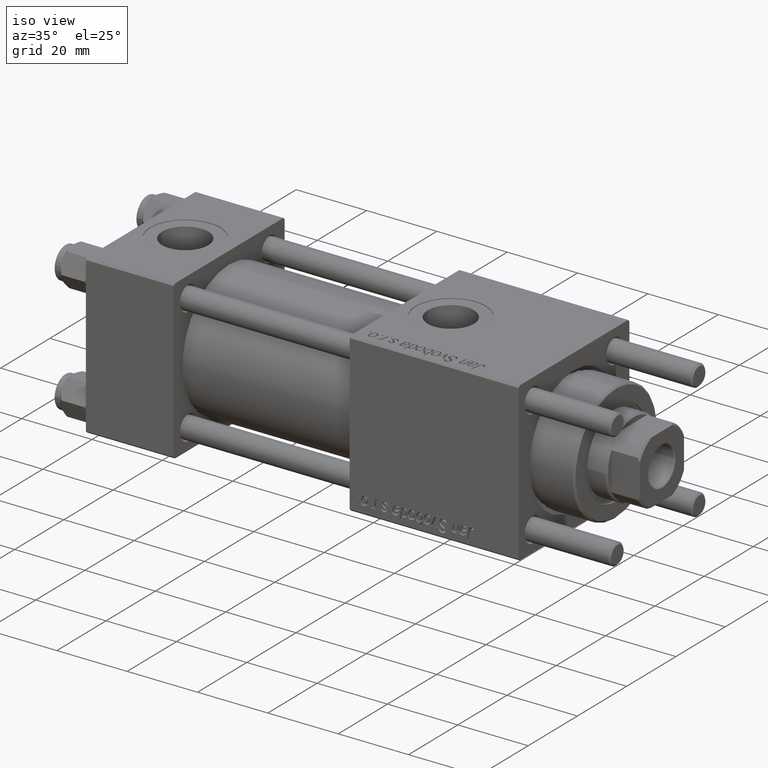
[diagram: clean part render]
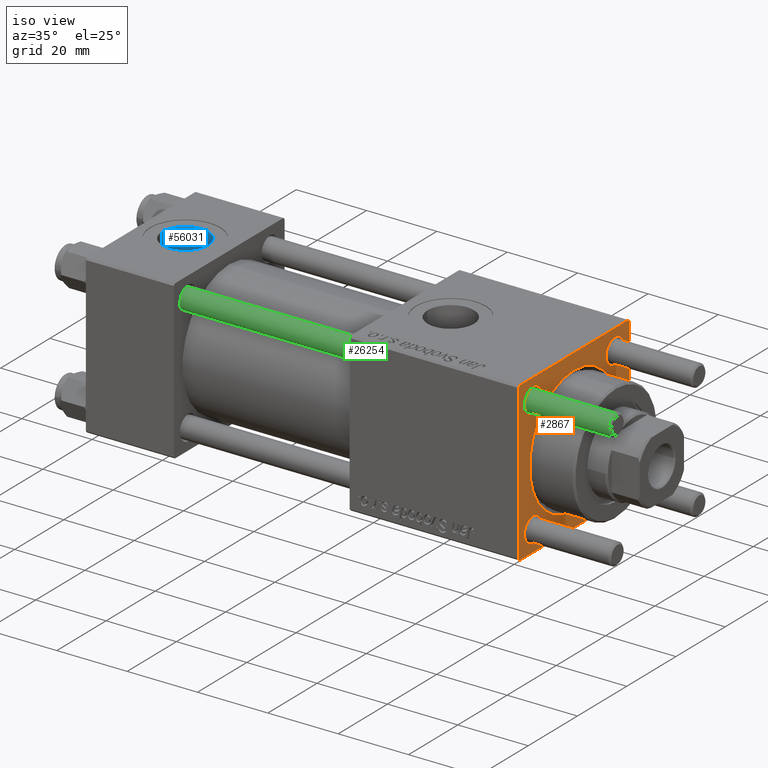
[diagram: same view with three faces highlighted in distinct colors, each labeled with its STEP entity id]
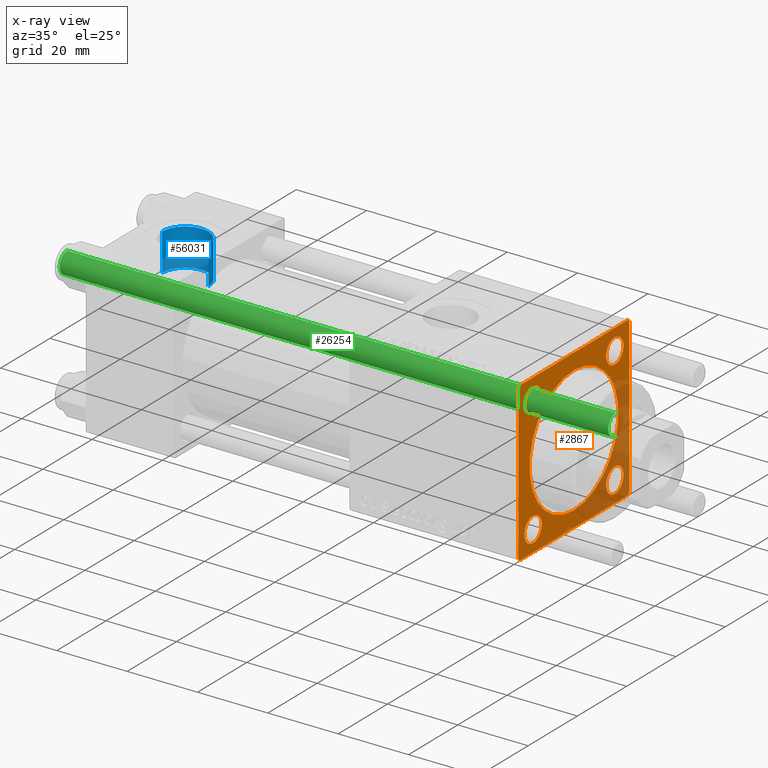
[diagram: x-ray of the same camera — body ghosted, the three highlighted faces saturated]
A machine part, iso view with three faces highlighted in distinct colors.
The next image is the same camera in x-ray (body ghosted, the three faces saturated) — at least one of them is partly hidden behind the body in this view.
Their STEP definitions:

[orange] entity #2867 — the highlighted planar face has unit normal (-1, 0, 0).
#214 = AXIS2_PLACEMENT_3D ( 'NONE', #21863, #52619, #13211 ) ;
#650 = CIRCLE ( 'NONE', #33704, 3.499999999999989342 ) ;
#688 = AXIS2_PLACEMENT_3D ( 'NONE', #17578, #35122, #29943 ) ;
#1397 = ORIENTED_EDGE ( 'NONE', *, *, #16731, .T. ) ;
#1808 = CARTESIAN_POINT ( 'NONE',  ( 123.0000000000000142, -16.59999999999999076, -13.09999999999997655 ) ) ;
#1847 = VERTEX_POINT ( 'NONE', #38902 ) ;
#1916 = DIRECTION ( 'NONE',  ( 0.000000000000000000, 0.000000000000000000, 1.000000000000000000 ) ) ;
#2017 = ORIENTED_EDGE ( 'NONE', *, *, #36062, .T. ) ;
#2074 = VERTEX_POINT ( 'NONE', #52852 ) ;
#2379 = FACE_BOUND ( 'NONE', #4529, .T. ) ;
#2867 = ADVANCED_FACE ( 'NONE', ( #33970, #51516, #6692, #41755, #2379, #17864 ), #30506, .F. ) ;
#2946 = AXIS2_PLACEMENT_3D ( 'NONE', #32946, #7348, #1916 ) ;
#3245 = DIRECTION ( 'NONE',  ( 0.000000000000000000, 0.000000000000000000, 1.000000000000000000 ) ) ;
#3787 = AXIS2_PLACEMENT_3D ( 'NONE', #25736, #42964, #17086 ) ;
#4095 = ORIENTED_EDGE ( 'NONE', *, *, #42957, .T. ) ;
#4123 = ORIENTED_EDGE ( 'NONE', *, *, #48319, .T. ) ;
#4492 = EDGE_CURVE ( 'NONE', #29755, #36740, #8053, .T. ) ;
#4529 = EDGE_LOOP ( 'NONE', ( #26542, #1397 ) ) ;
#4968 = VERTEX_POINT ( 'NONE', #20352 ) ;
#5859 = ORIENTED_EDGE ( 'NONE', *, *, #36490, .T. ) ;
#6384 = VECTOR ( 'NONE', #26390, 1000.000000000000000 ) ;
#6692 = FACE_BOUND ( 'NONE', #42175, .T. ) ;
#6887 = EDGE_CURVE ( 'NONE', #25739, #25387, #21450, .T. ) ;
#7004 = VERTEX_POINT ( 'NONE', #50725 ) ;
#7311 = VERTEX_POINT ( 'NONE', #41460 ) ;
#7348 = DIRECTION ( 'NONE',  ( -1.000000000000000000, 0.000000000000000000, -0.000000000000000000 ) ) ;
#7392 = VERTEX_POINT ( 'NONE', #21313 ) ;
#7532 = LINE ( 'NONE', #11841, #43984 ) ;
#8053 = CIRCLE ( 'NONE', #55787, 18.00000000000000355 ) ;
#8193 = VERTEX_POINT ( 'NONE', #1808 ) ;
#8553 = AXIS2_PLACEMENT_3D ( 'NONE', #30912, #34952, #8786 ) ;
#8786 = DIRECTION ( 'NONE',  ( 0.000000000000000000, 0.000000000000000000, 1.000000000000000000 ) ) ;
#9824 = EDGE_CURVE ( 'NONE', #4968, #7004, #26102, .T. ) ;
#10310 = ORIENTED_EDGE ( 'NONE', *, *, #48461, .T. ) ;
#10844 = EDGE_CURVE ( 'NONE', #10893, #15717, #34722, .T. ) ;
#10893 = VERTEX_POINT ( 'NONE', #36163 ) ;
#11514 = VERTEX_POINT ( 'NONE', #52132 ) ;
#11816 = DIRECTION ( 'NONE',  ( -1.000000000000000000, 0.000000000000000000, -0.000000000000000000 ) ) ;
#11841 = CARTESIAN_POINT ( 'NONE',  ( 123.0000000000000142, 21.99999999999996092, 22.50000000000000355 ) ) ;
#12779 = CARTESIAN_POINT ( 'NONE',  ( 123.0000000000000142, -22.49999999999999645, -21.99999999999997868 ) ) ;
#13211 = DIRECTION ( 'NONE',  ( 0.000000000000000000, 0.000000000000000000, 1.000000000000000000 ) ) ;
#13268 = CIRCLE ( 'NONE', #19728, 3.500000000000031086 ) ;
#13425 = CARTESIAN_POINT ( 'NONE',  ( 123.0000000000000142, 22.50000000000000355, 22.50000000000000355 ) ) ;
#14593 = CARTESIAN_POINT ( 'NONE',  ( 123.0000000000000142, -21.99999999999999645, -22.50000000000000000 ) ) ;
#14870 = EDGE_CURVE ( 'NONE', #43153, #23550, #18499, .T. ) ;
#15717 = VERTEX_POINT ( 'NONE', #12779 ) ;
#15859 = ORIENTED_EDGE ( 'NONE', *, *, #10844, .T. ) ;
#15934 = VECTOR ( 'NONE', #54939, 1000.000000000000000 ) ;
#16731 = EDGE_CURVE ( 'NONE', #36740, #29755, #20256, .T. ) ;
#17086 = DIRECTION ( 'NONE',  ( 0.000000000000000000, 0.000000000000000000, 1.000000000000000000 ) ) ;
#17560 = VERTEX_POINT ( 'NONE', #35635 ) ;
#17578 = CARTESIAN_POINT ( 'NONE',  ( 123.0000000000000142, 0.000000000000000000, 0.000000000000000000 ) ) ;
#17864 = FACE_OUTER_BOUND ( 'NONE', #54609, .T. ) ;
#18499 = CIRCLE ( 'NONE', #3787, 3.500000000000031086 ) ;
#18737 = DIRECTION ( 'NONE',  ( -1.000000000000000000, 0.000000000000000000, -0.000000000000000000 ) ) ;
#19203 = DIRECTION ( 'NONE',  ( 0.000000000000000000, 0.7071067811865425767, -0.7071067811865525687 ) ) ;
#19728 = AXIS2_PLACEMENT_3D ( 'NONE', #48995, #30871, #53313 ) ;
#20204 = AXIS2_PLACEMENT_3D ( 'NONE', #55523, #11816, #29358 ) ;
#20256 = CIRCLE ( 'NONE', #33091, 18.00000000000000355 ) ;
#20352 = CARTESIAN_POINT ( 'NONE',  ( 123.0000000000000142, 21.99999999999996092, 22.50000000000000355 ) ) ;
#20360 = ORIENTED_EDGE ( 'NONE', *, *, #14870, .T. ) ;
#20436 = CARTESIAN_POINT ( 'NONE',  ( 123.0000000000000142, 22.50000000000000355, -22.49999999999999645 ) ) ;
#20661 = CARTESIAN_POINT ( 'NONE',  ( 123.0000000000000142, -21.99999999999998224, -22.50000000000000000 ) ) ;
#20663 = ORIENTED_EDGE ( 'NONE', *, *, #35722, .T. ) ;
#21060 = CARTESIAN_POINT ( 'NONE',  ( 123.0000000000000142, 22.50000000000000355, -22.00000000000001066 ) ) ;
#21313 = CARTESIAN_POINT ( 'NONE',  ( 123.0000000000000142, -16.59999999999999076, 20.10000000000000142 ) ) ;
#21351 = CARTESIAN_POINT ( 'NONE',  ( 123.0000000000000142, 0.000000000000000000, 0.000000000000000000 ) ) ;
#21450 = LINE ( 'NONE', #26043, #37530 ) ;
#21804 = DIRECTION ( 'NONE',  ( 0.000000000000000000, 0.000000000000000000, -1.000000000000000000 ) ) ;
#21839 = EDGE_CURVE ( 'NONE', #25739, #4968, #7532, .T. ) ;
#21863 = CARTESIAN_POINT ( 'NONE',  ( 123.0000000000000142, -16.59999999999999076, -16.60000000000000853 ) ) ;
#21933 = LINE ( 'NONE', #56703, #51607 ) ;
#22162 = EDGE_CURVE ( 'NONE', #7311, #7392, #25691, .T. ) ;
#23193 = AXIS2_PLACEMENT_3D ( 'NONE', #42914, #30262, #3245 ) ;
#23550 = VERTEX_POINT ( 'NONE', #45769 ) ;
#24103 = ORIENTED_EDGE ( 'NONE', *, *, #9824, .T. ) ;
#25387 = VERTEX_POINT ( 'NONE', #49955 ) ;
#25472 = DIRECTION ( 'NONE',  ( 0.000000000000000000, 0.000000000000000000, -1.000000000000000000 ) ) ;
#25691 = CIRCLE ( 'NONE', #20204, 3.499999999999989342 ) ;
#25736 = CARTESIAN_POINT ( 'NONE',  ( 123.0000000000000142, 16.59999999999999787, 16.60000000000000497 ) ) ;
#25739 = VERTEX_POINT ( 'NONE', #50163 ) ;
#26043 = CARTESIAN_POINT ( 'NONE',  ( 123.0000000000000142, 22.50000000000000355, 22.50000000000000355 ) ) ;
#26055 = EDGE_CURVE ( 'NONE', #15717, #39037, #31847, .T. ) ;
#26086 = EDGE_LOOP ( 'NONE', ( #38886, #33690 ) ) ;
#26102 = LINE ( 'NONE', #13425, #6384 ) ;
#26227 = LINE ( 'NONE', #21060, #30752 ) ;
#26390 = DIRECTION ( 'NONE',  ( 0.000000000000000000, -1.000000000000000000, -2.312964634635742957E-16 ) ) ;
#26542 = ORIENTED_EDGE ( 'NONE', *, *, #4492, .T. ) ;
#28676 = CARTESIAN_POINT ( 'NONE',  ( 123.0000000000000142, -16.59999999999999076, 16.60000000000000853 ) ) ;
#29060 = LINE ( 'NONE', #20436, #15934 ) ;
#29358 = DIRECTION ( 'NONE',  ( 0.000000000000000000, 0.000000000000000000, 1.000000000000000000 ) ) ;
#29406 = ORIENTED_EDGE ( 'NONE', *, *, #40200, .F. ) ;
#29755 = VERTEX_POINT ( 'NONE', #39279 ) ;
#29943 = DIRECTION ( 'NONE',  ( -0.000000000000000000, 0.000000000000000000, 1.000000000000000000 ) ) ;
#30262 = DIRECTION ( 'NONE',  ( -1.000000000000000000, 0.000000000000000000, -0.000000000000000000 ) ) ;
#30408 = CARTESIAN_POINT ( 'NONE',  ( 123.0000000000000142, -22.49999999999999645, 22.49999999999999289 ) ) ;
#30506 = PLANE ( 'NONE',  #688 ) ;
#30752 = VECTOR ( 'NONE', #47502, 1000.000000000000000 ) ;
#30871 = DIRECTION ( 'NONE',  ( -1.000000000000000000, 0.000000000000000000, -0.000000000000000000 ) ) ;
#30912 = CARTESIAN_POINT ( 'NONE',  ( 123.0000000000000142, 16.59999999999999787, 16.60000000000000497 ) ) ;
#31847 = LINE ( 'NONE', #14593, #34786 ) ;
#32396 = CIRCLE ( 'NONE', #8553, 3.500000000000031086 ) ;
#32946 = CARTESIAN_POINT ( 'NONE',  ( 123.0000000000000142, 16.59999999999999787, -16.60000000000000497 ) ) ;
#33091 = AXIS2_PLACEMENT_3D ( 'NONE', #21351, #43749, #35428 ) ;
#33690 = ORIENTED_EDGE ( 'NONE', *, *, #56150, .T. ) ;
#33704 = AXIS2_PLACEMENT_3D ( 'NONE', #28676, #51081, #37866 ) ;
#33970 = FACE_BOUND ( 'NONE', #44911, .T. ) ;
#34302 = ORIENTED_EDGE ( 'NONE', *, *, #26055, .T. ) ;
#34722 = LINE ( 'NONE', #30408, #36756 ) ;
#34786 = VECTOR ( 'NONE', #19203, 999.9999999999998863 ) ;
#34952 = DIRECTION ( 'NONE',  ( -1.000000000000000000, 0.000000000000000000, -0.000000000000000000 ) ) ;
#35122 = DIRECTION ( 'NONE',  ( -1.000000000000000000, 0.000000000000000000, -0.000000000000000000 ) ) ;
#35428 = DIRECTION ( 'NONE',  ( 0.000000000000000000, 0.000000000000000000, 1.000000000000000000 ) ) ;
#35635 = CARTESIAN_POINT ( 'NONE',  ( 123.0000000000000142, 22.00000000000000355, -22.49999999999999645 ) ) ;
#35722 = EDGE_CURVE ( 'NONE', #7004, #10893, #21933, .T. ) ;
#36062 = EDGE_CURVE ( 'NONE', #1847, #8193, #55309, .T. ) ;
#36108 = EDGE_CURVE ( 'NONE', #11514, #2074, #36935, .T. ) ;
#36163 = CARTESIAN_POINT ( 'NONE',  ( 123.0000000000000142, -22.49999999999999645, 22.00000000000000711 ) ) ;
#36490 = EDGE_CURVE ( 'NONE', #2074, #11514, #47955, .T. ) ;
#36740 = VERTEX_POINT ( 'NONE', #56073 ) ;
#36756 = VECTOR ( 'NONE', #21804, 1000.000000000000000 ) ;
#36935 = CIRCLE ( 'NONE', #2946, 3.500000000000031086 ) ;
#37530 = VECTOR ( 'NONE', #25472, 1000.000000000000000 ) ;
#37866 = DIRECTION ( 'NONE',  ( 0.000000000000000000, 0.000000000000000000, 1.000000000000000000 ) ) ;
#38886 = ORIENTED_EDGE ( 'NONE', *, *, #22162, .T. ) ;
#38902 = CARTESIAN_POINT ( 'NONE',  ( 123.0000000000000142, -16.59999999999999076, -20.10000000000003695 ) ) ;
#39037 = VERTEX_POINT ( 'NONE', #20661 ) ;
#39279 = CARTESIAN_POINT ( 'NONE',  ( 123.0000000000000142, 0.000000000000000000, -18.00000000000000355 ) ) ;
#39444 = DIRECTION ( 'NONE',  ( -0.000000000000000000, -0.7071067811865573427, -0.7071067811865378028 ) ) ;
#40200 = EDGE_CURVE ( 'NONE', #17560, #39037, #29060, .T. ) ;
#41460 = CARTESIAN_POINT ( 'NONE',  ( 123.0000000000000142, -16.59999999999999076, 13.10000000000001741 ) ) ;
#41755 = FACE_BOUND ( 'NONE', #26086, .T. ) ;
#42175 = EDGE_LOOP ( 'NONE', ( #4095, #20360 ) ) ;
#42880 = DIRECTION ( 'NONE',  ( 0.000000000000000000, -0.7071067811865573427, 0.7071067811865378028 ) ) ;
#42914 = CARTESIAN_POINT ( 'NONE',  ( 123.0000000000000142, 16.59999999999999787, -16.60000000000000497 ) ) ;
#42957 = EDGE_CURVE ( 'NONE', #23550, #43153, #32396, .T. ) ;
#42964 = DIRECTION ( 'NONE',  ( -1.000000000000000000, 0.000000000000000000, -0.000000000000000000 ) ) ;
#43153 = VERTEX_POINT ( 'NONE', #47250 ) ;
#43749 = DIRECTION ( 'NONE',  ( -1.000000000000000000, 0.000000000000000000, -0.000000000000000000 ) ) ;
#43984 = VECTOR ( 'NONE', #42880, 1000.000000000000000 ) ;
#44911 = EDGE_LOOP ( 'NONE', ( #2017, #4123 ) ) ;
#45769 = CARTESIAN_POINT ( 'NONE',  ( 123.0000000000000142, 16.59999999999999787, 13.09999999999997300 ) ) ;
#45875 = ORIENTED_EDGE ( 'NONE', *, *, #6887, .F. ) ;
#47250 = CARTESIAN_POINT ( 'NONE',  ( 123.0000000000000142, 16.59999999999999787, 20.10000000000003340 ) ) ;
#47465 = ORIENTED_EDGE ( 'NONE', *, *, #36108, .T. ) ;
#47502 = DIRECTION ( 'NONE',  ( -0.000000000000000000, 0.7071067811865573427, 0.7071067811865378028 ) ) ;
#47955 = CIRCLE ( 'NONE', #23193, 3.500000000000031086 ) ;
#48319 = EDGE_CURVE ( 'NONE', #8193, #1847, #13268, .T. ) ;
#48461 = EDGE_CURVE ( 'NONE', #17560, #25387, #26227, .T. ) ;
#48638 = CARTESIAN_POINT ( 'NONE',  ( 123.0000000000000142, 0.000000000000000000, 0.000000000000000000 ) ) ;
#48995 = CARTESIAN_POINT ( 'NONE',  ( 123.0000000000000142, -16.59999999999999076, -16.60000000000000853 ) ) ;
#49955 = CARTESIAN_POINT ( 'NONE',  ( 123.0000000000000142, 22.50000000000000355, -21.99999999999999645 ) ) ;
#49989 = EDGE_LOOP ( 'NONE', ( #47465, #5859 ) ) ;
#50163 = CARTESIAN_POINT ( 'NONE',  ( 123.0000000000000142, 22.50000000000000355, 21.99999999999997513 ) ) ;
#50725 = CARTESIAN_POINT ( 'NONE',  ( 123.0000000000000142, -21.99999999999998224, 22.49999999999999289 ) ) ;
#51081 = DIRECTION ( 'NONE',  ( -1.000000000000000000, 0.000000000000000000, -0.000000000000000000 ) ) ;
#51516 = FACE_BOUND ( 'NONE', #49989, .T. ) ;
#51607 = VECTOR ( 'NONE', #39444, 1000.000000000000000 ) ;
#52132 = CARTESIAN_POINT ( 'NONE',  ( 123.0000000000000142, 16.59999999999999787, -20.10000000000003340 ) ) ;
#52619 = DIRECTION ( 'NONE',  ( -1.000000000000000000, 0.000000000000000000, -0.000000000000000000 ) ) ;
#52852 = CARTESIAN_POINT ( 'NONE',  ( 123.0000000000000142, 16.59999999999999787, -13.09999999999997300 ) ) ;
#53242 = DIRECTION ( 'NONE',  ( 0.000000000000000000, 0.000000000000000000, 1.000000000000000000 ) ) ;
#53313 = DIRECTION ( 'NONE',  ( 0.000000000000000000, 0.000000000000000000, 1.000000000000000000 ) ) ;
#53676 = ORIENTED_EDGE ( 'NONE', *, *, #21839, .T. ) ;
#54609 = EDGE_LOOP ( 'NONE', ( #15859, #34302, #29406, #10310, #45875, #53676, #24103, #20663 ) ) ;
#54939 = DIRECTION ( 'NONE',  ( 0.000000000000000000, -1.000000000000000000, -7.709882115452476934E-17 ) ) ;
#55309 = CIRCLE ( 'NONE', #214, 3.500000000000031086 ) ;
#55523 = CARTESIAN_POINT ( 'NONE',  ( 123.0000000000000142, -16.59999999999999076, 16.60000000000000853 ) ) ;
#55787 = AXIS2_PLACEMENT_3D ( 'NONE', #48638, #18737, #53242 ) ;
#56073 = CARTESIAN_POINT ( 'NONE',  ( 123.0000000000000142, 2.204364238465235822E-15, 18.00000000000000355 ) ) ;
#56150 = EDGE_CURVE ( 'NONE', #7392, #7311, #650, .T. ) ;
#56703 = CARTESIAN_POINT ( 'NONE',  ( 123.0000000000000142, -22.49999999999999645, 22.00000000000000711 ) ) ;

[blue] entity #56031 — the highlighted cylindrical surface (edge-blend (fillet) strip) has radius 6.58 mm, axis along (0, 0, 1).
#133 = CIRCLE ( 'NONE', #46934, 6.579999999999999183 ) ;
#669 = VERTEX_POINT ( 'NONE', #17106 ) ;
#2125 = CARTESIAN_POINT ( 'NONE',  ( 5.920000000000002593, -9.289058821378490386E-16, 11.66598726114649409 ) ) ;
#2794 = DIRECTION ( 'NONE',  ( -0.000000000000000000, -0.000000000000000000, 1.000000000000000000 ) ) ;
#4894 = VERTEX_POINT ( 'NONE', #15455 ) ;
#9723 = EDGE_CURVE ( 'NONE', #30986, #669, #39447, .T. ) ;
#11437 = EDGE_CURVE ( 'NONE', #669, #4894, #21388, .T. ) ;
#13348 = ORIENTED_EDGE ( 'NONE', *, *, #33046, .T. ) ;
#15302 = CARTESIAN_POINT ( 'NONE',  ( 5.920000000000002593, -9.289058821378490386E-16, 22.30000000000000071 ) ) ;
#15455 = CARTESIAN_POINT ( 'NONE',  ( 19.07999999999999829, -1.734723475976807094E-15, 22.30000000000000071 ) ) ;
#16035 = EDGE_CURVE ( 'NONE', #30986, #23589, #44337, .T. ) ;
#17106 = CARTESIAN_POINT ( 'NONE',  ( 19.07999999999999829, -1.734723475976807094E-15, 11.66598726114649409 ) ) ;
#17201 = ORIENTED_EDGE ( 'NONE', *, *, #16035, .F. ) ;
#20965 = DIRECTION ( 'NONE',  ( 0.000000000000000000, 0.000000000000000000, 1.000000000000000000 ) ) ;
#21388 = LINE ( 'NONE', #56729, #33055 ) ;
#23589 = VERTEX_POINT ( 'NONE', #15302 ) ;
#24946 = FACE_OUTER_BOUND ( 'NONE', #27951, .T. ) ;
#26660 = VECTOR ( 'NONE', #45186, 1000.000000000000000 ) ;
#27951 = EDGE_LOOP ( 'NONE', ( #17201, #40380, #48023, #13348 ) ) ;
#29238 = CARTESIAN_POINT ( 'NONE',  ( 12.50000000000000000, -1.734723475976807094E-15, 11.69999999999999929 ) ) ;
#29274 = DIRECTION ( 'NONE',  ( -0.000000000000000000, -0.000000000000000000, -1.000000000000000000 ) ) ;
#30986 = VERTEX_POINT ( 'NONE', #2125 ) ;
#33046 = EDGE_CURVE ( 'NONE', #4894, #23589, #133, .T. ) ;
#33055 = VECTOR ( 'NONE', #42651, 1000.000000000000000 ) ;
#36297 = CARTESIAN_POINT ( 'NONE',  ( 5.920000000000002593, -9.289058821378490386E-16, 11.69999999999999929 ) ) ;
#38702 = DIRECTION ( 'NONE',  ( 1.000000000000000000, 0.000000000000000000, 0.000000000000000000 ) ) ;
#39447 = CIRCLE ( 'NONE', #48621, 6.579999999999999183 ) ;
#40380 = ORIENTED_EDGE ( 'NONE', *, *, #9723, .T. ) ;
#42449 = CYLINDRICAL_SURFACE ( 'NONE', #50210, 6.579999999999999183 ) ;
#42651 = DIRECTION ( 'NONE',  ( -0.000000000000000000, -0.000000000000000000, 1.000000000000000000 ) ) ;
#44337 = LINE ( 'NONE', #36297, #26660 ) ;
#45186 = DIRECTION ( 'NONE',  ( -0.000000000000000000, -0.000000000000000000, 1.000000000000000000 ) ) ;
#45952 = CARTESIAN_POINT ( 'NONE',  ( 12.50000000000000000, -1.734723475976807094E-15, 11.66598726114649409 ) ) ;
#46934 = AXIS2_PLACEMENT_3D ( 'NONE', #52001, #20965, #47404 ) ;
#47404 = DIRECTION ( 'NONE',  ( 1.000000000000000000, 0.000000000000000000, 0.000000000000000000 ) ) ;
#48023 = ORIENTED_EDGE ( 'NONE', *, *, #11437, .T. ) ;
#48621 = AXIS2_PLACEMENT_3D ( 'NONE', #45952, #29274, #50565 ) ;
#50210 = AXIS2_PLACEMENT_3D ( 'NONE', #29238, #2794, #38702 ) ;
#50565 = DIRECTION ( 'NONE',  ( 1.000000000000000000, 0.000000000000000000, 0.000000000000000000 ) ) ;
#52001 = CARTESIAN_POINT ( 'NONE',  ( 12.50000000000000000, -1.734723475976807094E-15, 22.30000000000000071 ) ) ;
#56031 = ADVANCED_FACE ( 'NONE', ( #24946 ), #42449, .F. ) ;
#56729 = CARTESIAN_POINT ( 'NONE',  ( 19.07999999999999829, -1.734723475976807094E-15, 11.69999999999999929 ) ) ;

[green] entity #26254 — the highlighted cylindrical surface (edge-blend (fillet) strip) has radius 3 mm, axis along (-1, 0, -0).
#3626 = CYLINDRICAL_SURFACE ( 'NONE', #22002, 3.000000000000000444 ) ;
#5511 = CARTESIAN_POINT ( 'NONE',  ( 3.000000000000000444, 3.673940397442060361E-16, 157.0000000000000000 ) ) ;
#7913 = DIRECTION ( 'NONE',  ( -0.000000000000000000, -0.000000000000000000, -1.000000000000000000 ) ) ;
#8390 = DIRECTION ( 'NONE',  ( -0.000000000000000000, -0.000000000000000000, 1.000000000000000000 ) ) ;
#9379 = CARTESIAN_POINT ( 'NONE',  ( 0.000000000000000000, 0.000000000000000000, 157.0000000000000000 ) ) ;
#13002 = CARTESIAN_POINT ( 'NONE',  ( 0.000000000000000000, 0.000000000000000000, 156.5000000000000284 ) ) ;
#14619 = VERTEX_POINT ( 'NONE', #51672 ) ;
#17029 = DIRECTION ( 'NONE',  ( 1.000000000000000000, 0.000000000000000000, 0.000000000000000000 ) ) ;
#17036 = CIRCLE ( 'NONE', #44594, 3.000000000000000444 ) ;
#19505 = EDGE_CURVE ( 'NONE', #14619, #24406, #34644, .T. ) ;
#20433 = CIRCLE ( 'NONE', #52564, 3.000000000000000444 ) ;
#21213 = ORIENTED_EDGE ( 'NONE', *, *, #31158, .T. ) ;
#22002 = AXIS2_PLACEMENT_3D ( 'NONE', #9379, #30361, #43587 ) ;
#24406 = VERTEX_POINT ( 'NONE', #46204 ) ;
#25097 = DIRECTION ( 'NONE',  ( 1.000000000000000000, 0.000000000000000000, 0.000000000000000000 ) ) ;
#25191 = CARTESIAN_POINT ( 'NONE',  ( -3.000000000000000444, 0.000000000000000000, 157.0000000000000000 ) ) ;
#26254 = ADVANCED_FACE ( 'NONE', ( #56814 ), #3626, .T. ) ;
#30361 = DIRECTION ( 'NONE',  ( -0.000000000000000000, -0.000000000000000000, -1.000000000000000000 ) ) ;
#31158 = EDGE_CURVE ( 'NONE', #44417, #53837, #44885, .T. ) ;
#32236 = DIRECTION ( 'NONE',  ( -0.000000000000000000, -0.000000000000000000, -1.000000000000000000 ) ) ;
#33852 = ORIENTED_EDGE ( 'NONE', *, *, #19505, .F. ) ;
#34644 = LINE ( 'NONE', #25191, #53160 ) ;
#36493 = EDGE_CURVE ( 'NONE', #14619, #44417, #20433, .T. ) ;
#38041 = DIRECTION ( 'NONE',  ( 0.000000000000000000, 0.000000000000000000, -1.000000000000000000 ) ) ;
#38248 = ORIENTED_EDGE ( 'NONE', *, *, #36493, .T. ) ;
#38634 = VECTOR ( 'NONE', #32236, 1000.000000000000000 ) ;
#40577 = CARTESIAN_POINT ( 'NONE',  ( 3.000000000000000444, 3.673940397442060361E-16, 0.4999999999999726885 ) ) ;
#42598 = CARTESIAN_POINT ( 'NONE',  ( 3.000000000000000444, 3.673940397442060361E-16, 156.5000000000000284 ) ) ;
#43173 = CARTESIAN_POINT ( 'NONE',  ( 0.000000000000000000, 0.000000000000000000, 0.4999999999999726885 ) ) ;
#43587 = DIRECTION ( 'NONE',  ( -1.000000000000000000, 0.000000000000000000, 0.000000000000000000 ) ) ;
#44417 = VERTEX_POINT ( 'NONE', #42598 ) ;
#44594 = AXIS2_PLACEMENT_3D ( 'NONE', #43173, #8390, #25097 ) ;
#44885 = LINE ( 'NONE', #5511, #38634 ) ;
#46204 = CARTESIAN_POINT ( 'NONE',  ( -3.000000000000000444, 0.000000000000000000, 0.4999999999999726885 ) ) ;
#48515 = ORIENTED_EDGE ( 'NONE', *, *, #51343, .T. ) ;
#49861 = EDGE_LOOP ( 'NONE', ( #38248, #21213, #48515, #33852 ) ) ;
#51343 = EDGE_CURVE ( 'NONE', #53837, #24406, #17036, .T. ) ;
#51672 = CARTESIAN_POINT ( 'NONE',  ( -3.000000000000000444, 0.000000000000000000, 156.5000000000000284 ) ) ;
#52564 = AXIS2_PLACEMENT_3D ( 'NONE', #13002, #38041, #17029 ) ;
#53160 = VECTOR ( 'NONE', #7913, 1000.000000000000000 ) ;
#53837 = VERTEX_POINT ( 'NONE', #40577 ) ;
#56814 = FACE_OUTER_BOUND ( 'NONE', #49861, .T. ) ;